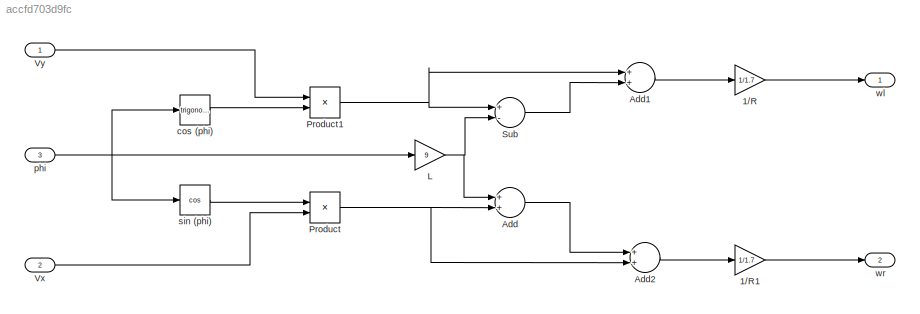
MODEL slx_accfd703d9fc
KIND model
CONFIG AbsTol = auto
CONFIG FixedStep = auto
CONFIG MaxStep = auto
CONFIG MinStep = auto
CONFIG RelTol = 1e-3
CONFIG SampleTimeConstraint = Unconstrained
CONFIG Solver = ode45
CONFIG SolverMode = Auto
CONFIG SolverName = ode45
CONFIG StartTime = 0.0
CONFIG StopTime = 10.0
BLOCK [Gain] 1//R 
  Gain = 1/1.7
  OutDataTypeStr = Inherit: Inherit via internal rule
  ParamDataTypeStr = Inherit: Inherit via internal rule
  SaturateOnIntegerOverflow = off
BLOCK [Gain] 1//R1
  Gain = 1/1.7
  OutDataTypeStr = Inherit: Inherit via internal rule
  ParamDataTypeStr = Inherit: Inherit via internal rule
  SaturateOnIntegerOverflow = off
BLOCK [Sum] Add 
  InputSameDT = off
  OutDataTypeStr = Inherit: Inherit via internal rule
  Ports = [2, 1]
  SaturateOnIntegerOverflow = off
BLOCK [Sum] Add1
  InputSameDT = off
  OutDataTypeStr = Inherit: Inherit via internal rule
  Ports = [2, 1]
  SaturateOnIntegerOverflow = off
BLOCK [Sum] Add2
  InputSameDT = off
  OutDataTypeStr = Inherit: Inherit via internal rule
  Ports = [2, 1]
  SaturateOnIntegerOverflow = off
BLOCK [Gain] L
  Gain = 9
  OutDataTypeStr = Inherit: Inherit via internal rule
  ParamDataTypeStr = Inherit: Inherit via internal rule
  SaturateOnIntegerOverflow = off
BLOCK [Product] Product
  InputSameDT = off
  OutDataTypeStr = Inherit: Inherit via internal rule
  Ports = [2, 1]
  RndMeth = Floor
  SaturateOnIntegerOverflow = off
BLOCK [Product] Product1
  InputSameDT = off
  OutDataTypeStr = Inherit: Inherit via internal rule
  Ports = [2, 1]
  RndMeth = Floor
  SaturateOnIntegerOverflow = off
BLOCK [Sum] Sub
  InputSameDT = off
  Inputs = +-
  OutDataTypeStr = Inherit: Inherit via internal rule
  Ports = [2, 1]
  SaturateOnIntegerOverflow = off
BLOCK [Inport] Vx
  IconDisplay = Port number
  Port = 2
BLOCK [Inport] Vy
  IconDisplay = Port number
BLOCK [Trigonometry] cos (phi)
  Ports = [1, 1]
BLOCK [Inport] phi
  IconDisplay = Port number
  Port = 3
BLOCK [Trigonometry] sin (phi)
  Operator = cos
  Ports = [1, 1]
BLOCK [Outport] wl
  IconDisplay = Port number
BLOCK [Outport] wr
  IconDisplay = Port number
  Port = 2
LINE 1//R :1 -> wl:1
LINE 1//R1:1 -> wr:1
LINE Add :1 -> Add2:1
LINE Add1:1 -> 1//R :1
LINE Add2:1 -> 1//R1:1
NET L:1 -> Add :1, Sub:2
NET Product1:1 -> Add1:1, Sub:1
NET Product:1 -> Add :2, Add2:2
LINE Sub:1 -> Add1:2
LINE Vx:1 -> Product:2
LINE Vy:1 -> Product1:1
LINE cos (phi):1 -> Product1:2
NET phi:1 -> L:1, cos (phi):1, sin (phi):1
LINE sin (phi):1 -> Product:1
note: NET lines group one-source signal fan-out (src -> all destinations, sorted); 1:1 wires keep LINE
